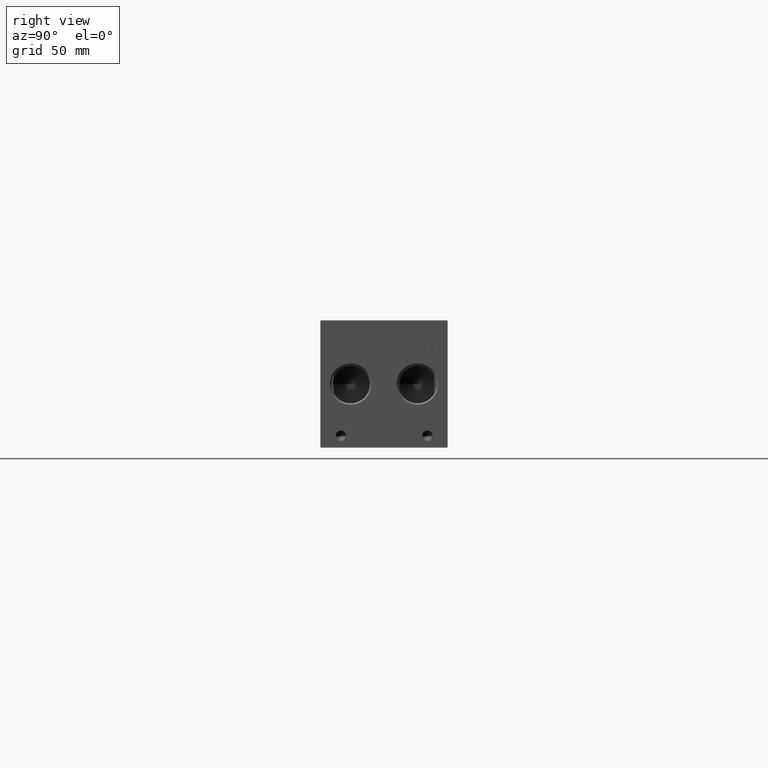
[diagram: clean part render]
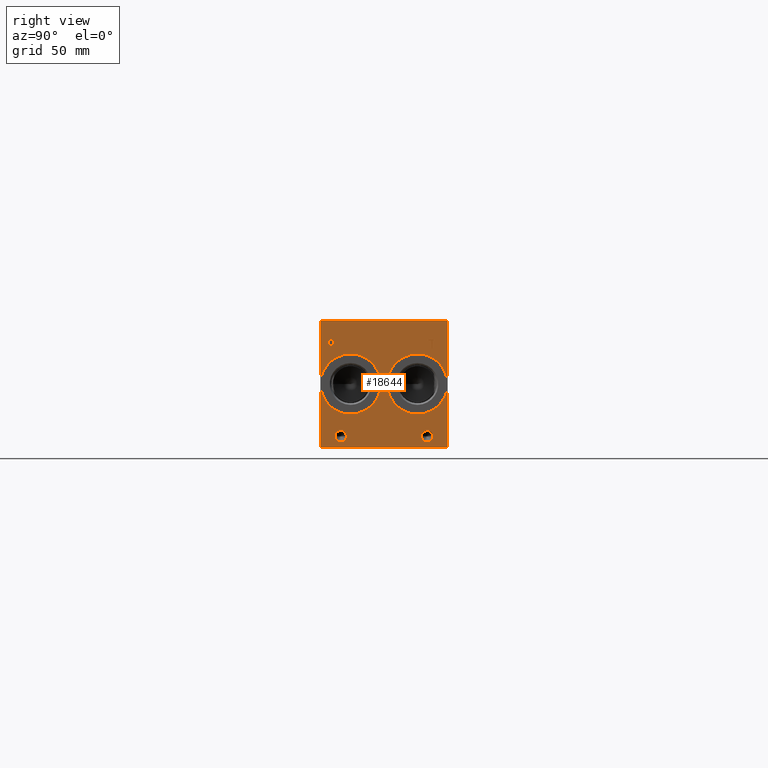
[diagram: same view with one face highlighted and labeled with its STEP entity id]
A machine part, right view. The second image highlights one B-rep face of the part: STEP entity #18644.
In plain terms, the highlighted planar face has unit normal (1, 0, 0).
Its self-contained STEP definition (entity closure, byte-faithful):
#554=CIRCLE('',#19491,21.0185);
#555=CIRCLE('',#19492,21.0185);
#556=CIRCLE('',#19493,21.0185);
#557=CIRCLE('',#19494,21.0185);
#558=CIRCLE('',#19495,3.9624);
#559=CIRCLE('',#19496,3.9624);
#560=CIRCLE('',#19497,3.9624);
#561=CIRCLE('',#19498,3.9624);
#1537=B_SPLINE_CURVE_WITH_KNOTS('',2,(#30464,#30465,#30466,#30467),
 .UNSPECIFIED.,.F.,.F.,(3,1,3),(0.,1.,2.),.UNSPECIFIED.);
#1539=B_SPLINE_CURVE_WITH_KNOTS('',2,(#30485,#30486,#30487,#30488),
 .UNSPECIFIED.,.F.,.F.,(3,1,3),(0.,1.,2.),.UNSPECIFIED.);
#1541=B_SPLINE_CURVE_WITH_KNOTS('',2,(#30534,#30535,#30536,#30537),
 .UNSPECIFIED.,.F.,.F.,(3,1,3),(0.,1.,2.),.UNSPECIFIED.);
#1543=B_SPLINE_CURVE_WITH_KNOTS('',2,(#30552,#30553,#30554,#30555),
 .UNSPECIFIED.,.F.,.F.,(3,1,3),(0.,1.,2.),.UNSPECIFIED.);
#1672=FACE_BOUND('',#3415,.T.);
#1673=FACE_BOUND('',#3416,.T.);
#1674=FACE_BOUND('',#3417,.T.);
#1675=FACE_BOUND('',#3418,.T.);
#1676=FACE_BOUND('',#3419,.T.);
#1677=FACE_BOUND('',#3420,.T.);
#2348=FACE_OUTER_BOUND('',#3414,.T.);
#3414=EDGE_LOOP('',(#14677,#14678,#14679,#14680));
#3415=EDGE_LOOP('',(#14681,#14682,#14683,#14684,#14685,#14686,#14687,#14688));
#3416=EDGE_LOOP('',(#14689,#14690));
#3417=EDGE_LOOP('',(#14691,#14692));
#3418=EDGE_LOOP('',(#14693,#14694));
#3419=EDGE_LOOP('',(#14695,#14696));
#3420=EDGE_LOOP('',(#14697,#14698,#14699,#14700,#14701,#14702,#14703,#14704,
#14705));
#4029=LINE('',#24934,#5611);
#5042=LINE('',#30265,#6624);
#5046=LINE('',#30273,#6628);
#5049=LINE('',#30279,#6631);
#5052=LINE('',#30285,#6634);
#5055=LINE('',#30291,#6637);
#5058=LINE('',#30297,#6640);
#5061=LINE('',#30303,#6643);
#5064=LINE('',#30308,#6646);
#5106=LINE('',#30497,#6688);
#5109=LINE('',#30503,#6691);
#5112=LINE('',#30509,#6694);
#5115=LINE('',#30515,#6697);
#5118=LINE('',#30521,#6700);
#5122=LINE('',#30563,#6704);
#5123=LINE('',#30565,#6705);
#5124=LINE('',#30566,#6706);
#5611=VECTOR('',#20561,10.);
#6624=VECTOR('',#22256,10.);
#6628=VECTOR('',#22262,10.);
#6631=VECTOR('',#22267,10.);
#6634=VECTOR('',#22272,10.);
#6637=VECTOR('',#22277,10.);
#6640=VECTOR('',#22282,10.);
#6643=VECTOR('',#22287,10.);
#6646=VECTOR('',#22292,10.);
#6688=VECTOR('',#22362,10.);
#6691=VECTOR('',#22367,10.);
#6694=VECTOR('',#22372,10.);
#6697=VECTOR('',#22377,10.);
#6700=VECTOR('',#22382,10.);
#6704=VECTOR('',#22390,10.);
#6705=VECTOR('',#22391,10.);
#6706=VECTOR('',#22392,10.);
#7182=VERTEX_POINT('',#24931);
#7183=VERTEX_POINT('',#24933);
#8151=VERTEX_POINT('',#30263);
#8152=VERTEX_POINT('',#30264);
#8155=VERTEX_POINT('',#30272);
#8157=VERTEX_POINT('',#30278);
#8159=VERTEX_POINT('',#30284);
#8161=VERTEX_POINT('',#30290);
#8163=VERTEX_POINT('',#30296);
#8165=VERTEX_POINT('',#30302);
#8197=VERTEX_POINT('',#30462);
#8198=VERTEX_POINT('',#30463);
#8201=VERTEX_POINT('',#30484);
#8203=VERTEX_POINT('',#30496);
#8205=VERTEX_POINT('',#30502);
#8207=VERTEX_POINT('',#30508);
#8209=VERTEX_POINT('',#30514);
#8211=VERTEX_POINT('',#30520);
#8213=VERTEX_POINT('',#30533);
#8215=VERTEX_POINT('',#30562);
#8216=VERTEX_POINT('',#30564);
#8217=VERTEX_POINT('',#30567);
#8218=VERTEX_POINT('',#30568);
#8219=VERTEX_POINT('',#30571);
#8220=VERTEX_POINT('',#30572);
#8221=VERTEX_POINT('',#30575);
#8222=VERTEX_POINT('',#30576);
#8223=VERTEX_POINT('',#30579);
#8224=VERTEX_POINT('',#30580);
#9051=EDGE_CURVE('',#7182,#7183,#4029,.T.);
#10472=EDGE_CURVE('',#8151,#8152,#5042,.T.);
#10476=EDGE_CURVE('',#8155,#8151,#5046,.T.);
#10479=EDGE_CURVE('',#8157,#8155,#5049,.T.);
#10482=EDGE_CURVE('',#8159,#8157,#5052,.T.);
#10485=EDGE_CURVE('',#8161,#8159,#5055,.T.);
#10488=EDGE_CURVE('',#8163,#8161,#5058,.T.);
#10491=EDGE_CURVE('',#8165,#8163,#5061,.T.);
#10494=EDGE_CURVE('',#8152,#8165,#5064,.T.);
#10541=EDGE_CURVE('',#8197,#8198,#1537,.T.);
#10545=EDGE_CURVE('',#8201,#8197,#1539,.T.);
#10548=EDGE_CURVE('',#8203,#8201,#5106,.T.);
#10551=EDGE_CURVE('',#8205,#8203,#5109,.T.);
#10554=EDGE_CURVE('',#8207,#8205,#5112,.T.);
#10557=EDGE_CURVE('',#8209,#8207,#5115,.T.);
#10560=EDGE_CURVE('',#8211,#8209,#5118,.T.);
#10563=EDGE_CURVE('',#8213,#8211,#1541,.T.);
#10566=EDGE_CURVE('',#8198,#8213,#1543,.T.);
#10568=EDGE_CURVE('',#7182,#8215,#5122,.T.);
#10569=EDGE_CURVE('',#8215,#8216,#5123,.T.);
#10570=EDGE_CURVE('',#7183,#8216,#5124,.T.);
#10571=EDGE_CURVE('',#8217,#8218,#554,.T.);
#10572=EDGE_CURVE('',#8218,#8217,#555,.T.);
#10573=EDGE_CURVE('',#8219,#8220,#556,.T.);
#10574=EDGE_CURVE('',#8220,#8219,#557,.T.);
#10575=EDGE_CURVE('',#8221,#8222,#558,.T.);
#10576=EDGE_CURVE('',#8222,#8221,#559,.T.);
#10577=EDGE_CURVE('',#8223,#8224,#560,.T.);
#10578=EDGE_CURVE('',#8224,#8223,#561,.T.);
#14677=ORIENTED_EDGE('',*,*,#10568,.T.);
#14678=ORIENTED_EDGE('',*,*,#10569,.T.);
#14679=ORIENTED_EDGE('',*,*,#10570,.F.);
#14680=ORIENTED_EDGE('',*,*,#9051,.F.);
#14681=ORIENTED_EDGE('',*,*,#10472,.T.);
#14682=ORIENTED_EDGE('',*,*,#10494,.T.);
#14683=ORIENTED_EDGE('',*,*,#10491,.T.);
#14684=ORIENTED_EDGE('',*,*,#10488,.T.);
#14685=ORIENTED_EDGE('',*,*,#10485,.T.);
#14686=ORIENTED_EDGE('',*,*,#10482,.T.);
#14687=ORIENTED_EDGE('',*,*,#10479,.T.);
#14688=ORIENTED_EDGE('',*,*,#10476,.T.);
#14689=ORIENTED_EDGE('',*,*,#10571,.T.);
#14690=ORIENTED_EDGE('',*,*,#10572,.T.);
#14691=ORIENTED_EDGE('',*,*,#10573,.T.);
#14692=ORIENTED_EDGE('',*,*,#10574,.T.);
#14693=ORIENTED_EDGE('',*,*,#10575,.T.);
#14694=ORIENTED_EDGE('',*,*,#10576,.T.);
#14695=ORIENTED_EDGE('',*,*,#10577,.T.);
#14696=ORIENTED_EDGE('',*,*,#10578,.T.);
#14697=ORIENTED_EDGE('',*,*,#10541,.T.);
#14698=ORIENTED_EDGE('',*,*,#10566,.T.);
#14699=ORIENTED_EDGE('',*,*,#10563,.T.);
#14700=ORIENTED_EDGE('',*,*,#10560,.T.);
#14701=ORIENTED_EDGE('',*,*,#10557,.T.);
#14702=ORIENTED_EDGE('',*,*,#10554,.T.);
#14703=ORIENTED_EDGE('',*,*,#10551,.T.);
#14704=ORIENTED_EDGE('',*,*,#10548,.T.);
#14705=ORIENTED_EDGE('',*,*,#10545,.T.);
#17348=PLANE('',#19490);
#18644=ADVANCED_FACE('',(#2348,#1672,#1673,#1674,#1675,#1676,#1677),#17348,
 .T.);
#19490=AXIS2_PLACEMENT_3D('',#30561,#22388,#22389);
#19491=AXIS2_PLACEMENT_3D('',#30569,#22393,#22394);
#19492=AXIS2_PLACEMENT_3D('',#30570,#22395,#22396);
#19493=AXIS2_PLACEMENT_3D('',#30573,#22397,#22398);
#19494=AXIS2_PLACEMENT_3D('',#30574,#22399,#22400);
#19495=AXIS2_PLACEMENT_3D('',#30577,#22401,#22402);
#19496=AXIS2_PLACEMENT_3D('',#30578,#22403,#22404);
#19497=AXIS2_PLACEMENT_3D('',#30581,#22405,#22406);
#19498=AXIS2_PLACEMENT_3D('',#30582,#22407,#22408);
#20561=DIRECTION('',(0.,0.,1.));
#22256=DIRECTION('',(0.,-1.,0.));
#22262=DIRECTION('',(0.,0.,-1.));
#22267=DIRECTION('',(0.,-1.,0.));
#22272=DIRECTION('',(0.,0.,-1.));
#22277=DIRECTION('',(0.,1.,0.));
#22282=DIRECTION('',(0.,0.,1.));
#22287=DIRECTION('',(0.,-1.,0.));
#22292=DIRECTION('',(0.,0.,1.));
#22362=DIRECTION('',(0.,1.,0.));
#22367=DIRECTION('',(0.,0.,1.));
#22372=DIRECTION('',(0.,-1.,0.));
#22377=DIRECTION('',(0.,0.,-1.));
#22382=DIRECTION('',(0.,-1.,0.));
#22388=DIRECTION('center_axis',(1.,0.,0.));
#22389=DIRECTION('ref_axis',(0.,1.,0.));
#22390=DIRECTION('',(0.,1.,0.));
#22391=DIRECTION('',(0.,0.,1.));
#22392=DIRECTION('',(0.,1.,0.));
#22393=DIRECTION('center_axis',(-1.,0.,0.));
#22394=DIRECTION('ref_axis',(0.,0.,-1.));
#22395=DIRECTION('center_axis',(-1.,0.,0.));
#22396=DIRECTION('ref_axis',(0.,0.,-1.));
#22397=DIRECTION('center_axis',(-1.,0.,0.));
#22398=DIRECTION('ref_axis',(0.,0.,-1.));
#22399=DIRECTION('center_axis',(-1.,0.,0.));
#22400=DIRECTION('ref_axis',(0.,0.,-1.));
#22401=DIRECTION('center_axis',(-1.,0.,0.));
#22402=DIRECTION('ref_axis',(0.,1.,0.));
#22403=DIRECTION('center_axis',(-1.,0.,0.));
#22404=DIRECTION('ref_axis',(0.,1.,0.));
#22405=DIRECTION('center_axis',(-1.,0.,0.));
#22406=DIRECTION('ref_axis',(0.,1.,0.));
#22407=DIRECTION('center_axis',(-1.,0.,0.));
#22408=DIRECTION('ref_axis',(0.,1.,0.));
#24931=CARTESIAN_POINT('',(495.3,0.,0.));
#24933=CARTESIAN_POINT('',(495.3,0.,88.9));
#24934=CARTESIAN_POINT('',(495.3,0.,0.));
#30263=CARTESIAN_POINT('',(495.3,78.375415271453,69.05625));
#30264=CARTESIAN_POINT('',(495.3,77.5314930799135,69.05625));
#30265=CARTESIAN_POINT('',(495.3,39.1877076357265,69.05625));
#30272=CARTESIAN_POINT('',(495.3,78.375415271453,74.6549533194816));
#30273=CARTESIAN_POINT('',(495.3,78.375415271453,37.3274766597408));
#30278=CARTESIAN_POINT('',(495.3,80.5058042183881,74.6549533194816));
#30279=CARTESIAN_POINT('',(495.3,40.252902109194,74.6549533194816));
#30284=CARTESIAN_POINT('',(495.3,80.5058042183881,75.4062499046326));
#30285=CARTESIAN_POINT('',(495.3,80.5058042183881,37.7031249523163));
#30290=CARTESIAN_POINT('',(495.3,75.4011041329784,75.4062499046326));
#30291=CARTESIAN_POINT('',(495.3,37.7005520664892,75.4062499046326));
#30296=CARTESIAN_POINT('',(495.3,75.4011041329784,74.6549533194816));
#30297=CARTESIAN_POINT('',(495.3,75.4011041329784,37.3274766597408));
#30302=CARTESIAN_POINT('',(495.3,77.5314930799135,74.6549533194816));
#30303=CARTESIAN_POINT('',(495.3,38.7657465399567,74.6549533194816));
#30308=CARTESIAN_POINT('',(495.3,77.5314930799135,34.528125));
#30462=CARTESIAN_POINT('',(495.3,8.66306720235939,75.0100181439707));
#30463=CARTESIAN_POINT('',(495.3,9.41950965453199,73.491987372604));
#30464=CARTESIAN_POINT('Ctrl Pts',(495.3,8.66306720235939,75.0100181439707));
#30465=CARTESIAN_POINT('Ctrl Pts',(495.3,9.01813202684857,74.7681623939564));
#30466=CARTESIAN_POINT('Ctrl Pts',(495.3,9.41950965453199,74.0220116758269));
#30467=CARTESIAN_POINT('Ctrl Pts',(495.3,9.41950965453199,73.491987372604));
#30484=CARTESIAN_POINT('',(495.3,7.0009521543883,75.4062499046326));
#30485=CARTESIAN_POINT('Ctrl Pts',(495.3,7.0009521543883,75.4062499046326));
#30486=CARTESIAN_POINT('Ctrl Pts',(495.3,7.56699752676236,75.4062499046326));
#30487=CARTESIAN_POINT('Ctrl Pts',(495.3,8.35946104808603,75.2209986918556));
#30488=CARTESIAN_POINT('Ctrl Pts',(495.3,8.66306720235939,75.0100181439707));
#30496=CARTESIAN_POINT('',(495.3,5.40573337769779,75.4062499046326));
#30497=CARTESIAN_POINT('',(495.3,2.70286668884889,75.4062499046326));
#30502=CARTESIAN_POINT('',(495.3,5.40573337769779,69.05625));
#30503=CARTESIAN_POINT('',(495.3,5.40573337769779,34.528125));
#30508=CARTESIAN_POINT('',(495.3,6.24965556923729,69.05625));
#30509=CARTESIAN_POINT('',(495.3,3.12482778461864,69.05625));
#30514=CARTESIAN_POINT('',(495.3,6.24965556923729,71.4233488299279));
#30515=CARTESIAN_POINT('',(495.3,6.24965556923729,35.7116744149639));
#30520=CARTESIAN_POINT('',(495.3,6.96493108523723,71.4233488299279));
#30521=CARTESIAN_POINT('',(495.3,3.48246554261861,71.4233488299279));
#30533=CARTESIAN_POINT('',(495.3,8.8637560162011,72.0820198086904));
#30534=CARTESIAN_POINT('Ctrl Pts',(495.3,8.8637560162011,72.0820198086904));
#30535=CARTESIAN_POINT('Ctrl Pts',(495.3,8.53442052681983,71.7578301863307));
#30536=CARTESIAN_POINT('Ctrl Pts',(495.3,7.64418553208609,71.4233488299279));
#30537=CARTESIAN_POINT('Ctrl Pts',(495.3,6.96493108523723,71.4233488299279));
#30552=CARTESIAN_POINT('Ctrl Pts',(495.3,9.41950965453199,73.491987372604));
#30553=CARTESIAN_POINT('Ctrl Pts',(495.3,9.41950965453199,73.0803180108774));
#30554=CARTESIAN_POINT('Ctrl Pts',(495.3,9.1261952343018,72.3393131597695));
#30555=CARTESIAN_POINT('Ctrl Pts',(495.3,8.8637560162011,72.0820198086904));
#30561=CARTESIAN_POINT('Origin',(495.3,0.,0.));
#30562=CARTESIAN_POINT('',(495.3,88.9,0.));
#30563=CARTESIAN_POINT('',(495.3,0.,0.));
#30564=CARTESIAN_POINT('',(495.3,88.9,88.9));
#30565=CARTESIAN_POINT('',(495.3,88.9,0.));
#30566=CARTESIAN_POINT('',(495.3,0.,88.9));
#30567=CARTESIAN_POINT('',(495.3,21.082,23.4315));
#30568=CARTESIAN_POINT('',(495.3,21.082,65.4685));
#30569=CARTESIAN_POINT('Origin',(495.3,21.082,44.45));
#30570=CARTESIAN_POINT('Origin',(495.3,21.082,44.45));
#30571=CARTESIAN_POINT('',(495.3,67.818,23.4315));
#30572=CARTESIAN_POINT('',(495.3,67.818,65.4685));
#30573=CARTESIAN_POINT('Origin',(495.3,67.818,44.45));
#30574=CARTESIAN_POINT('Origin',(495.3,67.818,44.45));
#30575=CARTESIAN_POINT('',(495.3,78.5876,7.9248));
#30576=CARTESIAN_POINT('',(495.3,70.6628,7.9248));
#30577=CARTESIAN_POINT('Origin',(495.3,74.6252,7.9248));
#30578=CARTESIAN_POINT('Origin',(495.3,74.6252,7.9248));
#30579=CARTESIAN_POINT('',(495.3,18.2372,7.9248));
#30580=CARTESIAN_POINT('',(495.3,10.3124,7.9248));
#30581=CARTESIAN_POINT('Origin',(495.3,14.2748,7.9248));
#30582=CARTESIAN_POINT('Origin',(495.3,14.2748,7.9248));